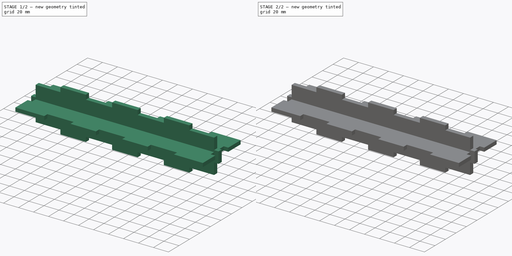
[diagram: build sequence overview — one tinted view per stage of 2, left to right]
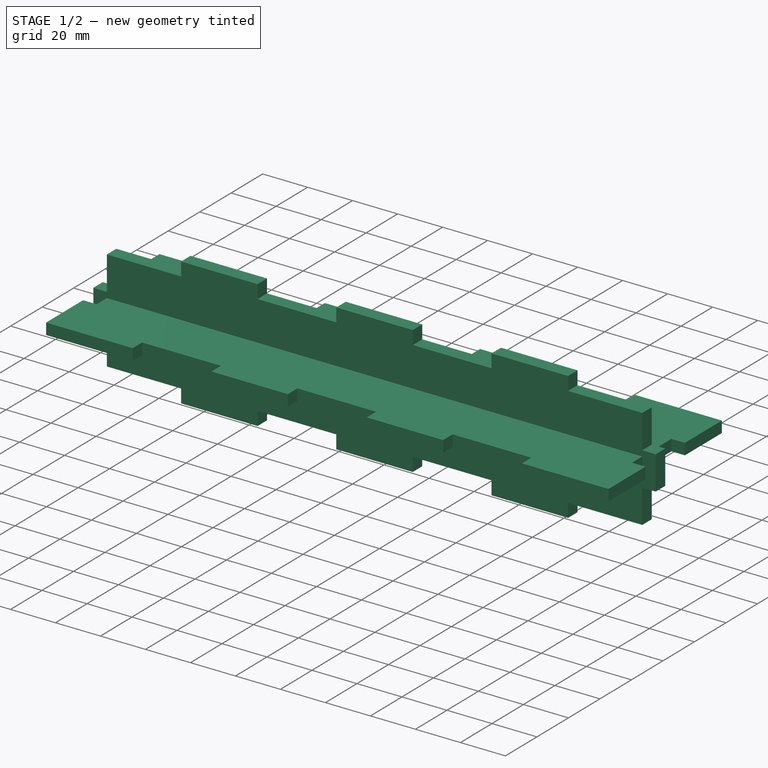
[diagram: stage 1 of 2 — iso view after this stage's code; geometry added in this stage tinted green]
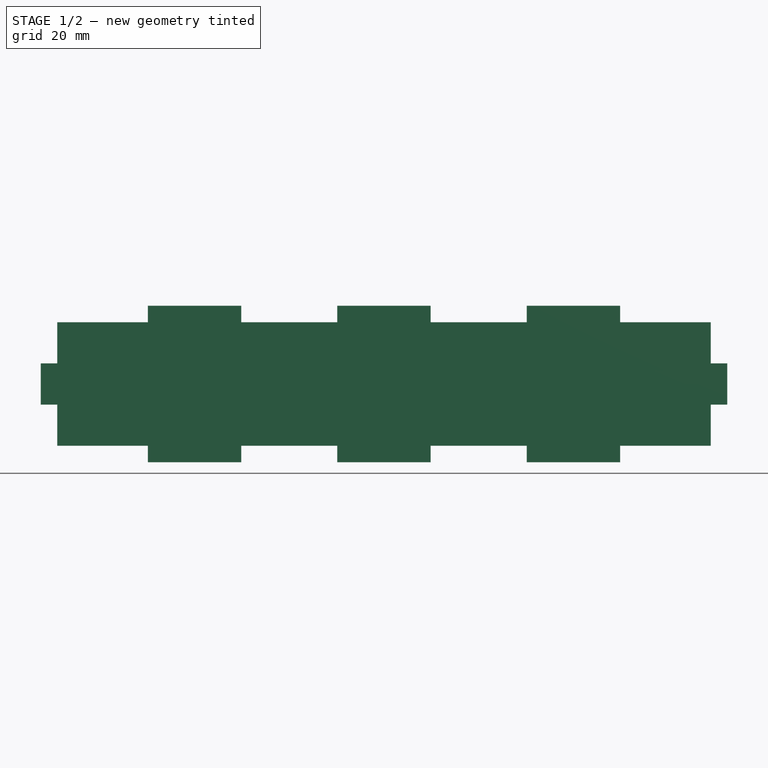
[diagram: stage 1 of 2 — front view after this stage's code; geometry added in this stage tinted green]
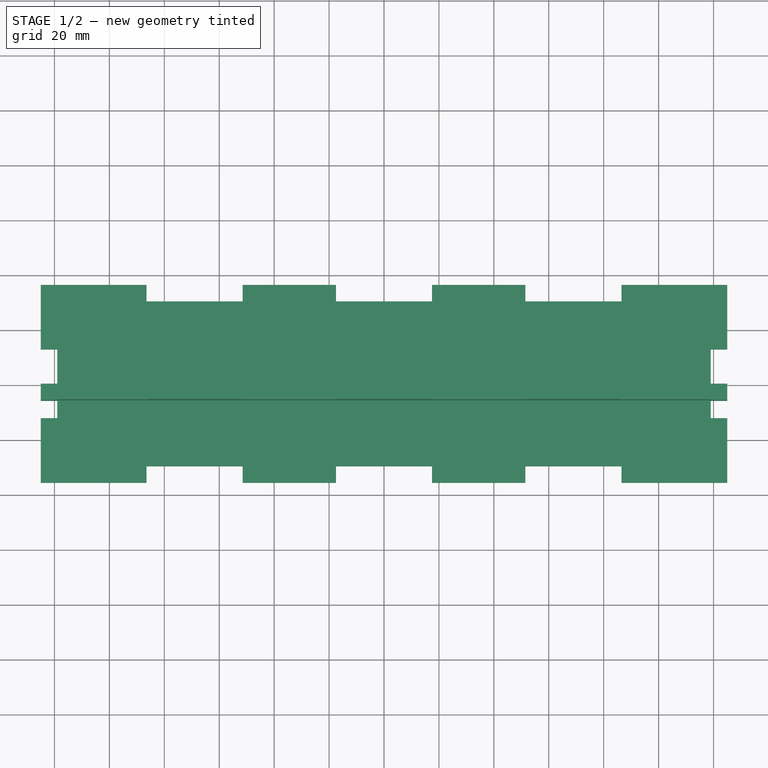
[diagram: stage 1 of 2 — top view after this stage's code; geometry added in this stage tinted green]
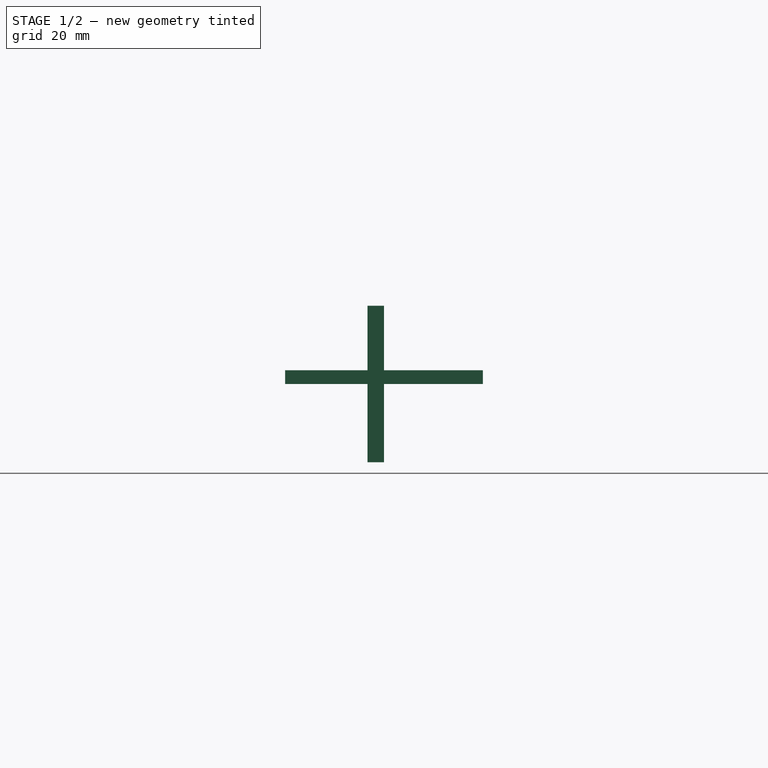
[diagram: stage 1 of 2 — right view after this stage's code; geometry added in this stage tinted green]
FCSTD DOCUMENT  (FreeCAD 0.18.4R)
Label: box_10gig
License: All rights reserved
LicenseURL: http://en.wikipedia.org/wiki/All_rights_reserved
objects: Sketcher::SketchObject×4, PartDesign::Pad×4, PartDesign::Body×4, Raytracing::RayFeature×4, App::VRMLObject×1, Raytracing::RayProject×1, Part::Feature×1, App::Part×1
note: 17 computed .brp shape members not serialized (recipe doc carries the construction recipe); baked Part::Feature solids carry a one-line shape summary decoded from their .brp

FEATURE [PartDesign::Body] Body001  label="rear"
  Group = -> [Sketch,Pad001]
  Origin = -> Origin
  Placement = pos=(0,36.0003,28.1194) rot=(0,0,1;0rad)
  Tip = -> Pad001
FEATURE [Sketcher::SketchObject] CopySketch001
  sketch-geometry (36):
    g0: LineSegment StartX=-125 StartY=36 StartZ=0 EndX=-86.5 EndY=36 EndZ=0
    g1: LineSegment StartX=-86.5 StartY=36 StartZ=0 EndX=-86.5 EndY=30 EndZ=0
    g2: LineSegment StartX=-86.5 StartY=30 StartZ=0 EndX=-51.5 EndY=30 EndZ=0
    g3: LineSegment StartX=-51.5 StartY=30 StartZ=0 EndX=-51.5 EndY=36 EndZ=0
    g4: LineSegment StartX=-51.5 StartY=36 StartZ=0 EndX=-17.5 EndY=36 EndZ=0
    g5: LineSegment StartX=-17.5 StartY=36 StartZ=0 EndX=-17.5 EndY=30 EndZ=0
    g6: LineSegment StartX=-17.5 StartY=30 StartZ=0 EndX=17.5 EndY=30 EndZ=0
    g7: LineSegment StartX=17.5 StartY=30 StartZ=0 EndX=17.5 EndY=36 EndZ=0
    g8: LineSegment StartX=17.5 StartY=36 StartZ=0 EndX=51.5 EndY=36 EndZ=0
    g9: LineSegment StartX=51.5 StartY=36 StartZ=0 EndX=51.5 EndY=30 EndZ=0
    g10: LineSegment StartX=51.5 StartY=30 StartZ=0 EndX=86.5 EndY=30 EndZ=0
    g11: LineSegment StartX=86.5 StartY=30 StartZ=0 EndX=86.5 EndY=36 EndZ=0
    g12: LineSegment StartX=86.5 StartY=36 StartZ=0 EndX=125 EndY=36 EndZ=0
    g13: LineSegment StartX=125 StartY=36 StartZ=0 EndX=125 EndY=12.5 EndZ=0
    g14: LineSegment StartX=125 StartY=12.5 StartZ=0 EndX=119 EndY=12.5 EndZ=0
    g15: LineSegment StartX=119 StartY=12.5 StartZ=0 EndX=119 EndY=-12.5 EndZ=0
    g16: LineSegment StartX=119 StartY=-12.5 StartZ=0 EndX=125 EndY=-12.5 EndZ=0
    g17: LineSegment StartX=125 StartY=-12.5 StartZ=0 EndX=125 EndY=-36 EndZ=0
    g18: LineSegment StartX=125 StartY=-36 StartZ=0 EndX=86.5 EndY=-36 EndZ=0
    g19: LineSegment StartX=86.5 StartY=-36 StartZ=0 EndX=86.5 EndY=-30 EndZ=0
    g20: LineSegment StartX=86.5 StartY=-30 StartZ=0 EndX=51.5 EndY=-30 EndZ=0
    g21: LineSegment StartX=51.5 StartY=-30 StartZ=0 EndX=51.5 EndY=-36 EndZ=0
    g22: LineSegment StartX=51.5 StartY=-36 StartZ=0 EndX=17.5 EndY=-36 EndZ=0
    g23: LineSegment StartX=17.5 StartY=-36 StartZ=0 EndX=17.5 EndY=-30 EndZ=0
    g24: LineSegment StartX=17.5 StartY=-30 StartZ=0 EndX=-17.5 EndY=-30 EndZ=0
    g25: LineSegment StartX=-17.5 StartY=-30 StartZ=0 EndX=-17.5 EndY=-36 EndZ=0
    g26: LineSegment StartX=-17.5 StartY=-36 StartZ=0 EndX=-51.5 EndY=-36 EndZ=0
    g27: LineSegment StartX=-51.5 StartY=-36 StartZ=0 EndX=-51.5 EndY=-30 EndZ=0
    g28: LineSegment StartX=-51.5 StartY=-30 StartZ=0 EndX=-86.5 EndY=-30 EndZ=0
    g29: LineSegment StartX=-86.5 StartY=-30 StartZ=0 EndX=-86.5 EndY=-36 EndZ=0
    g30: LineSegment StartX=-86.5 StartY=-36 StartZ=0 EndX=-125 EndY=-36 EndZ=0
    g31: LineSegment StartX=-125 StartY=-36 StartZ=0 EndX=-125 EndY=-12.5 EndZ=0
    g32: LineSegment StartX=-125 StartY=-12.5 StartZ=0 EndX=-119 EndY=-12.5 EndZ=0
    g33: LineSegment StartX=-119 StartY=-12.5 StartZ=0 EndX=-119 EndY=12.5 EndZ=0
    g34: LineSegment StartX=-119 StartY=12.5 StartZ=0 EndX=-125 EndY=12.5 EndZ=0
    g35: LineSegment StartX=-125 StartY=12.5 StartZ=0 EndX=-125 EndY=36 EndZ=0
  constraints (107):
    c: Coincident(g0,g1)
    c: Coincident(g1,g2)
    c: Coincident(g2,g3)
    c: Coincident(g3,g4)
    c: Coincident(g4,g5)
    c: Coincident(g5,g6)
    c: Coincident(g6,g7)
    c: Coincident(g7,g8)
    c: Coincident(g8,g9)
    c: Coincident(g9,g10)
    c: Coincident(g10,g11)
    c: Coincident(g11,g12)
    c: Coincident(g12,g13)
    c: Coincident(g13,g14)
    c: Coincident(g14,g15)
    c: Coincident(g15,g16)
    c: Coincident(g16,g17)
    c: Coincident(g17,g18)
    c: Coincident(g18,g19)
    c: Coincident(g19,g20)
    c: Coincident(g20,g21)
    c: Coincident(g21,g22)
    c: Coincident(g22,g23)
    c: Coincident(g23,g24)
    c: Coincident(g24,g25)
    c: Coincident(g25,g26)
    c: Coincident(g26,g27)
    c: Coincident(g27,g28)
    c: Coincident(g28,g29)
    c: Coincident(g29,g30)
    c: Coincident(g30,g31)
    c: Coincident(g31,g32)
    c: Coincident(g32,g33)
    c: Coincident(g33,g34)
    c: Coincident(g34,g35)
    c: Coincident(g35,g0)
    c: Horizontal(g2)
    c: Horizontal(g10)
    c: Horizontal(g20)
    c: Horizontal(g24)
    c: Horizontal(g28)
    c: Horizontal(g32)
    c: Horizontal(g34)
    c: Horizontal(g0)
    c: Horizontal(g4)
    c: Horizontal(g8)
    c: Horizontal(g12)
    c: Horizontal(g14)
    c: Horizontal(g16)
    c: Horizontal(g18)
    c: Horizontal(g22)
    c: Horizontal(g26)
    c: Horizontal(g30)
    c: Vertical(g35)
    c: Vertical(g1)
    c: Vertical(g29)
    c: Vertical(g27)
    c: Vertical(g25)
    c: Vertical(g23)
    c: Vertical(g21)
    c: Vertical(g19)
    c: Vertical(g17)
    c: Vertical(g13)
    c: Vertical(g11)
    c: Vertical(g9)
    c: Vertical(g7)
    c: Vertical(g5)
    c: Vertical(g3)
    c: Symmetric(g5,g6,g-2)
    c: Symmetric(g14,g15,g-1)
    c: DistanceX(g30,g17) = 250
    c: DistanceY(g11,g11) = 6
    c: DistanceY(g28,g1) = 60
    c: Equal(g34,g1)
    c: Equal(g1,g3)
    c: Equal(g3,g5)
    c: Equal(g5,g7)
    c: Equal(g7,g9)
    c: Equal(g9,g11)
    c: Equal(g11,g14)
    c: Equal(g14,g16)
    c: Equal(g16,g19)
    c: Equal(g19,g21)
    c: Equal(g21,g25)
    c: Equal(g25,g27)
    c: Equal(g27,g29)
    c: Equal(g29,g32)
    c: Symmetric(g30,g17,g-2)
    c: Symmetric(g33,g32,g-1)
    c: Symmetric(g0,g30,g-1)
    c: Equal(g2,g6)
    c: Equal(g10,g6)
    c: Equal(g2,g28)
    c: Equal(g24,g6)
    c: Equal(g10,g20)
    c: DistanceX(g2,g2) = 35
    c: Equal(g6,g2)
    c: Equal(g10,g6)
    c: Equal(g2,g28)
    c: Equal(g8,g4)
    c: Equal(g26,g22)
    c: Equal(g4,g26)
    c: DistanceX(g4,g4) = 34
    c: Equal(g33,g15)
    c: DistanceY(g33,g33) = 25
    c: Equal(g4,g26)
    c: Equal(g30,g0)
FEATURE [PartDesign::Pad] Pad002
  Length = 5
  Length2 = 100
  Profile = -> CopySketch001
  Type = 0
FEATURE [PartDesign::Body] Body002  label="top"
  Group = -> [Pad002]
  Origin = -> Origin002
  Placement = pos=(0,0,51) rot=(0,0,1;0rad)
  Tip = -> Pad002
FEATURE [Sketcher::SketchObject] Sketch001
  MapMode = 5
  Placement = pos=(0,0,0) rot=(1,0,0;1.5708rad)
  Support = -> [XZ_Plane003]
  sketch-geometry (36):
    g0: LineSegment StartX=-119 StartY=22.5 StartZ=0 EndX=-119 EndY=7.5 EndZ=0
    g1: LineSegment StartX=-125 StartY=7.5 StartZ=0 EndX=-125 EndY=-7.5 EndZ=0
    g2: LineSegment StartX=-119 StartY=-7.5 StartZ=0 EndX=-119 EndY=-22.5 EndZ=0
    g3: LineSegment StartX=-119 StartY=-22.5 StartZ=0 EndX=-86 EndY=-22.5 EndZ=0
    g4: LineSegment StartX=-86 StartY=-22.5 StartZ=0 EndX=-86 EndY=-28.5 EndZ=0
    g5: LineSegment StartX=-86 StartY=-28.5 StartZ=0 EndX=-52 EndY=-28.5 EndZ=0
    g6: LineSegment StartX=-52 StartY=-28.5 StartZ=0 EndX=-52 EndY=-22.5 EndZ=0
    g7: LineSegment StartX=-52 StartY=-22.5 StartZ=0 EndX=-17 EndY=-22.5 EndZ=0
    g8: LineSegment StartX=-17 StartY=-22.5 StartZ=0 EndX=-17 EndY=-28.5 EndZ=0
    g9: LineSegment StartX=-17 StartY=-28.5 StartZ=0 EndX=17 EndY=-28.5 EndZ=0
    g10: LineSegment StartX=17 StartY=-28.5 StartZ=0 EndX=17 EndY=-22.5 EndZ=0
    g11: LineSegment StartX=17 StartY=-22.5 StartZ=0 EndX=52 EndY=-22.5 EndZ=0
    g12: LineSegment StartX=52 StartY=-22.5 StartZ=0 EndX=52 EndY=-28.5 EndZ=0
    g13: LineSegment StartX=52 StartY=-28.5 StartZ=0 EndX=86 EndY=-28.5 EndZ=0
    g14: LineSegment StartX=86 StartY=-28.5 StartZ=0 EndX=86 EndY=-22.5 EndZ=0
    g15: LineSegment StartX=86 StartY=-22.5 StartZ=0 EndX=119 EndY=-22.5 EndZ=0
    g16: LineSegment StartX=119 StartY=-22.5 StartZ=0 EndX=119 EndY=-7.5 EndZ=0
    g17: LineSegment StartX=125 StartY=-7.5 StartZ=0 EndX=125 EndY=7.5 EndZ=0
    g18: LineSegment StartX=119 StartY=7.5 StartZ=0 EndX=119 EndY=22.5 EndZ=0
    g19: LineSegment StartX=119 StartY=22.5 StartZ=0 EndX=86 EndY=22.5 EndZ=0
    g20: LineSegment StartX=86 StartY=22.5 StartZ=0 EndX=86 EndY=28.5 EndZ=0
    g21: LineSegment StartX=86 StartY=28.5 StartZ=0 EndX=52 EndY=28.5 EndZ=0
    g22: LineSegment StartX=52 StartY=28.5 StartZ=0 EndX=52 EndY=22.5 EndZ=0
    g23: LineSegment StartX=52 StartY=22.5 StartZ=0 EndX=17 EndY=22.5 EndZ=0
    g24: LineSegment StartX=17 StartY=22.5 StartZ=0 EndX=17 EndY=28.5 EndZ=0
    g25: LineSegment StartX=17 StartY=28.5 StartZ=0 EndX=-17 EndY=28.5 EndZ=0
    g26: LineSegment StartX=-17 StartY=28.5 StartZ=0 EndX=-17 EndY=22.5 EndZ=0
    g27: LineSegment StartX=-17 StartY=22.5 StartZ=0 EndX=-52 EndY=22.5 EndZ=0
    g28: LineSegment StartX=-52 StartY=22.5 StartZ=0 EndX=-52 EndY=28.5 EndZ=0
    g29: LineSegment StartX=-52 StartY=28.5 StartZ=0 EndX=-86 EndY=28.5 EndZ=0
    g30: LineSegment StartX=-86 StartY=28.5 StartZ=0 EndX=-86 EndY=22.5 EndZ=0
    g31: LineSegment StartX=-86 StartY=22.5 StartZ=0 EndX=-119 EndY=22.5 EndZ=0
    g32: LineSegment StartX=-125 StartY=7.5 StartZ=0 EndX=-119 EndY=7.5 EndZ=0
    g33: LineSegment StartX=-119 StartY=-7.5 StartZ=0 EndX=-125 EndY=-7.5 EndZ=0
    g34: LineSegment StartX=125 StartY=-7.5 StartZ=0 EndX=119 EndY=-7.5 EndZ=0
    g35: LineSegment StartX=125 StartY=7.5 StartZ=0 EndX=119 EndY=7.5 EndZ=0
  constraints (105):
    c: Vertical(g0)
    c: Vertical(g1)
    c: Vertical(g2)
    c: Coincident(g2,g3)
    c: Coincident(g3,g4)
    c: Vertical(g4)
    c: Coincident(g4,g5)
    c: Coincident(g5,g6)
    c: Coincident(g6,g7)
    c: Coincident(g7,g8)
    c: Coincident(g8,g9)
    c: Coincident(g9,g10)
    c: Vertical(g10)
    c: Coincident(g10,g11)
    c: Horizontal(g11)
    c: Coincident(g11,g12)
    c: Coincident(g12,g13)
    c: Horizontal(g13)
    c: Coincident(g13,g14)
    c: Coincident(g14,g15)
    c: Horizontal(g15)
    c: Coincident(g15,g16)
    c: Vertical(g18)
    c: Coincident(g18,g19)
    c: Coincident(g19,g20)
    c: Vertical(g20)
    c: Coincident(g20,g21)
    c: Horizontal(g21)
    c: Coincident(g21,g22)
    c: Coincident(g22,g23)
    c: Horizontal(g23)
    c: Coincident(g23,g24)
    c: Coincident(g24,g25)
    c: Coincident(g25,g26)
    c: Coincident(g26,g27)
    c: Horizontal(g27)
    c: Coincident(g27,g28)
    c: Vertical(g28)
    c: Coincident(g28,g29)
    c: Coincident(g29,g30)
    c: Vertical(g30)
    c: Coincident(g30,g31)
    c: Coincident(g31,g0)
    c: Equal(g30,g28)
    c: Equal(g28,g26)
    c: Equal(g26,g24)
    c: Equal(g24,g22)
    c: Equal(g22,g20)
    c: Horizontal(g31)
    c: Horizontal(g29)
    c: Horizontal(g5)
    c: Horizontal(g3)
    c: Horizontal(g7)
    c: Horizontal(g19)
    c: Vertical(g26)
    c: Vertical(g24)
    c: Vertical(g22)
    c: Vertical(g12)
    c: Vertical(g8)
    c: Vertical(g6)
    c: Equal(g12,g14)
    c: Equal(g10,g12)
    c: Equal(g8,g10)
    c: Equal(g6,g8)
    c: Equal(g4,g6)
    c: Vertical(g16)
    c: Vertical(g14)
    c: Coincident(g32,g1)
    c: Coincident(g32,g0)
    c: Horizontal(g32)
    c: Coincident(g33,g2)
    c: Coincident(g33,g1)
    c: Horizontal(g33)
    c: Coincident(g34,g17)
    c: Coincident(g34,g16)
    c: Coincident(g35,g17)
    c: Horizontal(g35)
    c: Equal(g20,g35)
    c: Equal(g34,g35)
    c: Equal(g34,g14)
    c: Equal(g4,g33)
    c: Coincident(g35,g18)
    c: Symmetric(g17,g17,g-1)
    c: Equal(g18,g16)
    c: Equal(g0,g2)
    c: Equal(g17,g1)
    c: Equal(g33,g32)
    c: Equal(g27,g23)
    c: Equal(g25,g29)
    c: Equal(g29,g21)
    c: DistanceY(g30,g29) = 6
    c: DistanceX(g1,g17) = 250
    c: DistanceY(g15,g18) = 45
    c: Symmetric(g8,g9,g-2)
    c: Equal(g7,g27)
    c: Symmetric(g25,g24,g-2)
    c: Symmetric(g1,g17,g-2)
    c: DistanceY(g17,g17) = 15
    c: DistanceX(g29,g29) = 34
    c: DistanceX(g27,g27) = 35
    c: Equal(g13,g5)
    c: Equal(g9,g25)
    c: Equal(g11,g7)
    c: Equal(g13,g5)
    c: Equal(g5,g29)
FEATURE [PartDesign::Pad] Pad003
  Length = 6
  Length2 = 100
  Placement = pos=(0,0,0) rot=(1,0,0;1.5708rad)
  Profile = -> Sketch001
  Type = 0
FEATURE [PartDesign::Body] Body003  label="front"
  Group = -> [Sketch001,Pad003]
  Origin = -> Origin003
  Placement = pos=(0,-30.0016,28.1194) rot=(0,0,1;0rad)
  Tip = -> Pad003
FEATURE [Raytracing::RayFeature] Body_View
  Result = <blob: 18440 chars omitted>
  Source = -> Body
  Transparency = 0
FEATURE [Raytracing::RayFeature] Body001_View
  Result = <blob: 25648 chars omitted>
  Source = -> Body001
  Transparency = 0
FEATURE [Raytracing::RayFeature] Body002_View
  Result = <blob: 18890 chars omitted>
  Source = -> Body002
  Transparency = 0
FEATURE [Raytracing::RayFeature] Body003_View
  Result = <blob: 21845 chars omitted>
  Source = -> Body003
  Transparency = 0
FEATURE [Raytracing::RayProject] PovProject
  Camera = // declares position and view direction\n\n// Generated by FreeCAD (http://www.freecadweb.org/)\n#declare cam_location =  <-290.453,53.4225,67.8351>;\n#declare cam_look_at  = <35.6243,3.04154,-2.65304>;\n#declare cam_sky      = <0.148622,0.988709,-0.0191511>;\n#declare cam_angle    = 45; \ncamera {\n  location  cam_location\n  look_at   cam_look_at\n  sky       cam_sky\n  angle     cam_angle \n  right x*3648/2736\n}
  Group = -> [Body_View,Body001_View,Body002_View,Body003_View]
  Template = <path>
FEATURE [Part::Feature] Part__Feature  label="˟°1"
  Placement = pos=(-89.92,8.03953e-07,27.6303) rot=(0,1,0;1.5708rad)
  shape: bbox 28.2 x 41.27 x 41.27 mm, 170 faces (baked)
FEATURE [App::Part] _0X28P3_FRAME_HOOK  label="fan"
  Group = -> [Part__Feature]
  Origin = -> Origin004
note: 1 file-system path scrubbed to <path> (originals preserved in the JSON sidecar)
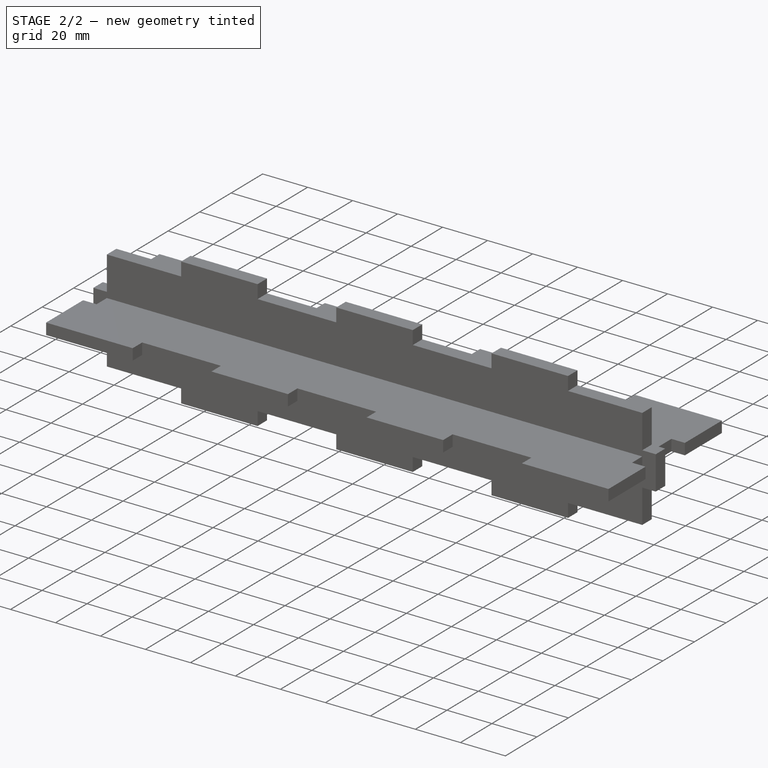
[diagram: stage 2 of 2 — iso view after this stage's code; geometry added in this stage tinted green]
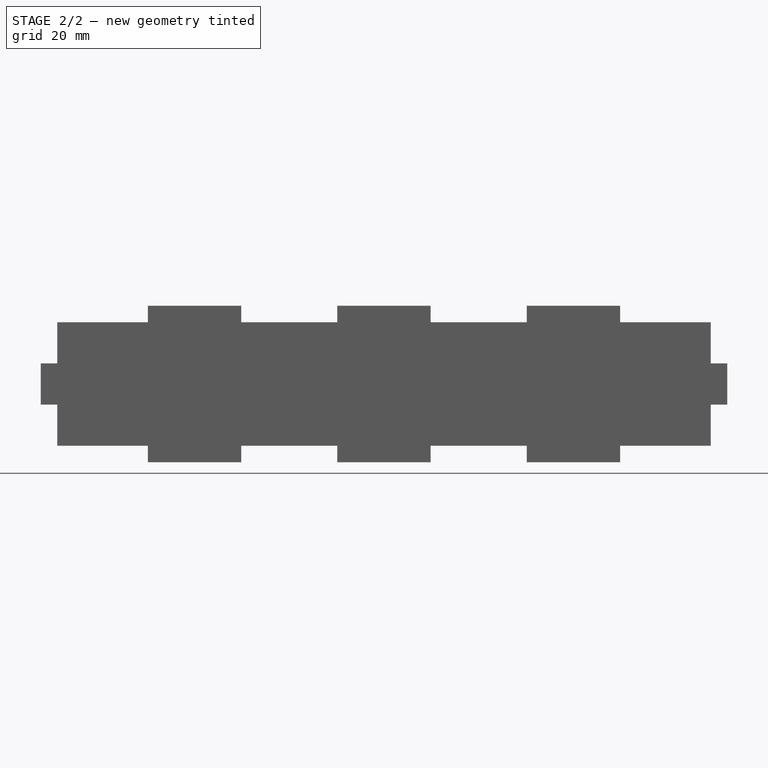
[diagram: stage 2 of 2 — front view after this stage's code; geometry added in this stage tinted green]
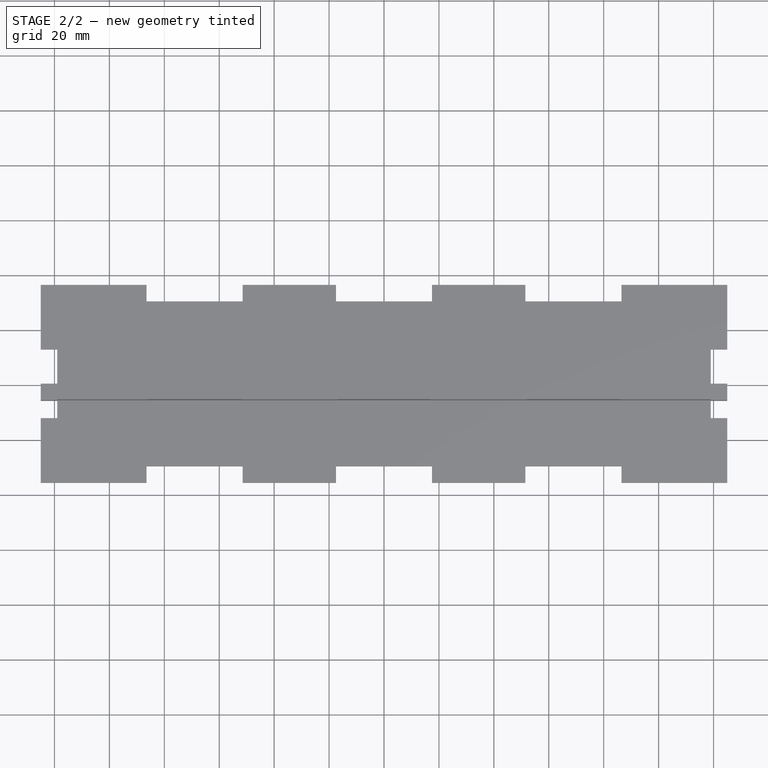
[diagram: stage 2 of 2 — top view after this stage's code; geometry added in this stage tinted green]
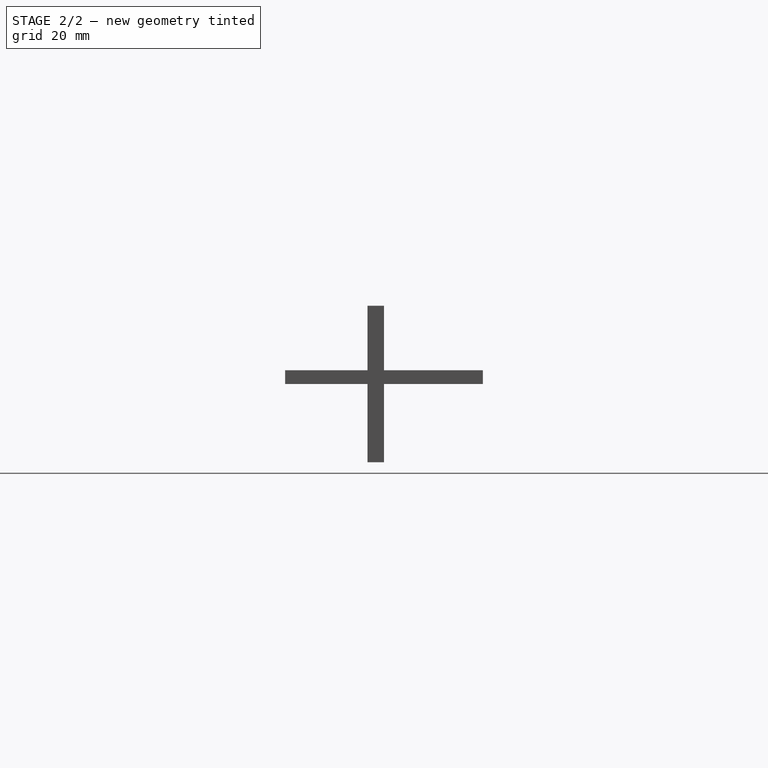
[diagram: stage 2 of 2 — right view after this stage's code; geometry added in this stage tinted green]
FEATURE [App::VRMLObject] multi_smtpa_linear  label="multi-smtpa_linear"
  Placement = pos=(-158.501,77.1112,39.7191) rot=(0,0,1;0rad)
FEATURE [Sketcher::SketchObject] CopySketch
  sketch-geometry (36):
    g0: LineSegment StartX=-125 StartY=36 StartZ=0 EndX=-86.5 EndY=36 EndZ=0
    g1: LineSegment StartX=-86.5 StartY=36 StartZ=0 EndX=-86.5 EndY=30 EndZ=0
    g2: LineSegment StartX=-86.5 StartY=30 StartZ=0 EndX=-51.5 EndY=30 EndZ=0
    g3: LineSegment StartX=-51.5 StartY=30 StartZ=0 EndX=-51.5 EndY=36 EndZ=0
    g4: LineSegment StartX=-51.5 StartY=36 StartZ=0 EndX=-17.5 EndY=36 EndZ=0
    g5: LineSegment StartX=-17.5 StartY=36 StartZ=0 EndX=-17.5 EndY=30 EndZ=0
    g6: LineSegment StartX=-17.5 StartY=30 StartZ=0 EndX=17.5 EndY=30 EndZ=0
    g7: LineSegment StartX=17.5 StartY=30 StartZ=0 EndX=17.5 EndY=36 EndZ=0
    g8: LineSegment StartX=17.5 StartY=36 StartZ=0 EndX=51.5 EndY=36 EndZ=0
    g9: LineSegment StartX=51.5 StartY=36 StartZ=0 EndX=51.5 EndY=30 EndZ=0
    g10: LineSegment StartX=51.5 StartY=30 StartZ=0 EndX=86.5 EndY=30 EndZ=0
    g11: LineSegment StartX=86.5 StartY=30 StartZ=0 EndX=86.5 EndY=36 EndZ=0
    g12: LineSegment StartX=86.5 StartY=36 StartZ=0 EndX=125 EndY=36 EndZ=0
    g13: LineSegment StartX=125 StartY=36 StartZ=0 EndX=125 EndY=12.5 EndZ=0
    g14: LineSegment StartX=125 StartY=12.5 StartZ=0 EndX=119 EndY=12.5 EndZ=0
    g15: LineSegment StartX=119 StartY=12.5 StartZ=0 EndX=119 EndY=-12.5 EndZ=0
    g16: LineSegment StartX=119 StartY=-12.5 StartZ=0 EndX=125 EndY=-12.5 EndZ=0
    g17: LineSegment StartX=125 StartY=-12.5 StartZ=0 EndX=125 EndY=-36 EndZ=0
    g18: LineSegment StartX=125 StartY=-36 StartZ=0 EndX=86.5 EndY=-36 EndZ=0
    g19: LineSegment StartX=86.5 StartY=-36 StartZ=0 EndX=86.5 EndY=-30 EndZ=0
    g20: LineSegment StartX=86.5 StartY=-30 StartZ=0 EndX=51.5 EndY=-30 EndZ=0
    g21: LineSegment StartX=51.5 StartY=-30 StartZ=0 EndX=51.5 EndY=-36 EndZ=0
    g22: LineSegment StartX=51.5 StartY=-36 StartZ=0 EndX=17.5 EndY=-36 EndZ=0
    g23: LineSegment StartX=17.5 StartY=-36 StartZ=0 EndX=17.5 EndY=-30 EndZ=0
    g24: LineSegment StartX=17.5 StartY=-30 StartZ=0 EndX=-17.5 EndY=-30 EndZ=0
    g25: LineSegment StartX=-17.5 StartY=-30 StartZ=0 EndX=-17.5 EndY=-36 EndZ=0
    g26: LineSegment StartX=-17.5 StartY=-36 StartZ=0 EndX=-51.5 EndY=-36 EndZ=0
    g27: LineSegment StartX=-51.5 StartY=-36 StartZ=0 EndX=-51.5 EndY=-30 EndZ=0
    g28: LineSegment StartX=-51.5 StartY=-30 StartZ=0 EndX=-86.5 EndY=-30 EndZ=0
    g29: LineSegment StartX=-86.5 StartY=-30 StartZ=0 EndX=-86.5 EndY=-36 EndZ=0
    g30: LineSegment StartX=-86.5 StartY=-36 StartZ=0 EndX=-125 EndY=-36 EndZ=0
    g31: LineSegment StartX=-125 StartY=-36 StartZ=0 EndX=-125 EndY=-12.5 EndZ=0
    g32: LineSegment StartX=-125 StartY=-12.5 StartZ=0 EndX=-119 EndY=-12.5 EndZ=0
    g33: LineSegment StartX=-119 StartY=-12.5 StartZ=0 EndX=-119 EndY=12.5 EndZ=0
    g34: LineSegment StartX=-119 StartY=12.5 StartZ=0 EndX=-125 EndY=12.5 EndZ=0
    g35: LineSegment StartX=-125 StartY=12.5 StartZ=0 EndX=-125 EndY=36 EndZ=0
  constraints (107):
    c: Coincident(g0,g1)
    c: Coincident(g1,g2)
    c: Coincident(g2,g3)
    c: Coincident(g3,g4)
    c: Coincident(g4,g5)
    c: Coincident(g5,g6)
    c: Coincident(g6,g7)
    c: Coincident(g7,g8)
    c: Coincident(g8,g9)
    c: Coincident(g9,g10)
    c: Coincident(g10,g11)
    c: Coincident(g11,g12)
    c: Coincident(g12,g13)
    c: Coincident(g13,g14)
    c: Coincident(g14,g15)
    c: Coincident(g15,g16)
    c: Coincident(g16,g17)
    c: Coincident(g17,g18)
    c: Coincident(g18,g19)
    c: Coincident(g19,g20)
    c: Coincident(g20,g21)
    c: Coincident(g21,g22)
    c: Coincident(g22,g23)
    c: Coincident(g23,g24)
    c: Coincident(g24,g25)
    c: Coincident(g25,g26)
    c: Coincident(g26,g27)
    c: Coincident(g27,g28)
    c: Coincident(g28,g29)
    c: Coincident(g29,g30)
    c: Coincident(g30,g31)
    c: Coincident(g31,g32)
    c: Coincident(g32,g33)
    c: Coincident(g33,g34)
    c: Coincident(g34,g35)
    c: Coincident(g35,g0)
    c: Horizontal(g2)
    c: Horizontal(g10)
    c: Horizontal(g20)
    c: Horizontal(g24)
    c: Horizontal(g28)
    c: Horizontal(g32)
    c: Horizontal(g34)
    c: Horizontal(g0)
    c: Horizontal(g4)
    c: Horizontal(g8)
    c: Horizontal(g12)
    c: Horizontal(g14)
    c: Horizontal(g16)
    c: Horizontal(g18)
    c: Horizontal(g22)
    c: Horizontal(g26)
    c: Horizontal(g30)
    c: Vertical(g35)
    c: Vertical(g1)
    c: Vertical(g29)
    c: Vertical(g27)
    c: Vertical(g25)
    c: Vertical(g23)
    c: Vertical(g21)
    c: Vertical(g19)
    c: Vertical(g17)
    c: Vertical(g13)
    c: Vertical(g11)
    c: Vertical(g9)
    c: Vertical(g7)
    c: Vertical(g5)
    c: Vertical(g3)
    c: Symmetric(g5,g6,g-2)
    c: Symmetric(g14,g15,g-1)
    c: DistanceX(g30,g17) = 250
    c: DistanceY(g11,g11) = 6
    c: DistanceY(g28,g1) = 60
    c: Equal(g34,g1)
    c: Equal(g1,g3)
    c: Equal(g3,g5)
    c: Equal(g5,g7)
    c: Equal(g7,g9)
    c: Equal(g9,g11)
    c: Equal(g11,g14)
    c: Equal(g14,g16)
    c: Equal(g16,g19)
    c: Equal(g19,g21)
    c: Equal(g21,g25)
    c: Equal(g25,g27)
    c: Equal(g27,g29)
    c: Equal(g29,g32)
    c: Symmetric(g30,g17,g-2)
    c: Symmetric(g33,g32,g-1)
    c: Symmetric(g0,g30,g-1)
    c: Equal(g2,g6)
    c: Equal(g10,g6)
    c: Equal(g2,g28)
    c: Equal(g24,g6)
    c: Equal(g10,g20)
    c: DistanceX(g2,g2) = 35
    c: Equal(g6,g2)
    c: Equal(g10,g6)
    c: Equal(g2,g28)
    c: Equal(g8,g4)
    c: Equal(g26,g22)
    c: Equal(g4,g26)
    c: DistanceX(g4,g4) = 34
    c: Equal(g33,g15)
    c: DistanceY(g33,g33) = 25
    c: Equal(g4,g26)
    c: Equal(g30,g0)
FEATURE [PartDesign::Pad] Pad
  Length = 5
  Length2 = 100
  Profile = -> CopySketch
  Type = 0
FEATURE [PartDesign::Body] Body  label="bottom"
  Group = -> [Pad]
  Origin = -> Origin001
  Tip = -> Pad
FEATURE [Sketcher::SketchObject] Sketch
  MapMode = 5
  Placement = pos=(0,0,0) rot=(1,0,0;1.5708rad)
  Support = -> [XZ_Plane]
  sketch-geometry (40):
    g0: LineSegment StartX=-119 StartY=22.5 StartZ=0 EndX=-119 EndY=7.5 EndZ=0
    g1: LineSegment StartX=-125 StartY=7.5 StartZ=0 EndX=-125 EndY=-7.5 EndZ=0
    g2: LineSegment StartX=-119 StartY=-7.5 StartZ=0 EndX=-119 EndY=-22.5 EndZ=0
    g3: LineSegment StartX=-119 StartY=-22.5 StartZ=0 EndX=-86 EndY=-22.5 EndZ=0
    g4: LineSegment StartX=-86 StartY=-22.5 StartZ=0 EndX=-86 EndY=-28.5 EndZ=0
    g5: LineSegment StartX=-86 StartY=-28.5 StartZ=0 EndX=-52 EndY=-28.5 EndZ=0
    g6: LineSegment StartX=-52 StartY=-28.5 StartZ=0 EndX=-52 EndY=-22.5 EndZ=0
    g7: LineSegment StartX=-52 StartY=-22.5 StartZ=0 EndX=-17 EndY=-22.5 EndZ=0
    g8: LineSegment StartX=-17 StartY=-22.5 StartZ=0 EndX=-17 EndY=-28.5 EndZ=0
    g9: LineSegment StartX=-17 StartY=-28.5 StartZ=0 EndX=17 EndY=-28.5 EndZ=0
    g10: LineSegment StartX=17 StartY=-28.5 StartZ=0 EndX=17 EndY=-22.5 EndZ=0
    g11: LineSegment StartX=17 StartY=-22.5 StartZ=0 EndX=52 EndY=-22.5 EndZ=0
    g12: LineSegment StartX=52 StartY=-22.5 StartZ=0 EndX=52 EndY=-28.5 EndZ=0
    g13: LineSegment StartX=52 StartY=-28.5 StartZ=0 EndX=86 EndY=-28.5 EndZ=0
    g14: LineSegment StartX=86 StartY=-28.5 StartZ=0 EndX=86 EndY=-22.5 EndZ=0
    g15: LineSegment StartX=86 StartY=-22.5 StartZ=0 EndX=119 EndY=-22.5 EndZ=0
    g16: LineSegment StartX=119 StartY=-22.5 StartZ=0 EndX=119 EndY=-7.5 EndZ=0
    g17: LineSegment StartX=125 StartY=-7.5 StartZ=0 EndX=125 EndY=7.5 EndZ=0
    g18: LineSegment StartX=119 StartY=7.5 StartZ=0 EndX=119 EndY=22.5 EndZ=0
    g19: LineSegment StartX=119 StartY=22.5 StartZ=0 EndX=86 EndY=22.5 EndZ=0
    g20: LineSegment StartX=86 StartY=22.5 StartZ=0 EndX=86 EndY=28.5 EndZ=0
    g21: LineSegment StartX=86 StartY=28.5 StartZ=0 EndX=52 EndY=28.5 EndZ=0
    g22: LineSegment StartX=52 StartY=28.5 StartZ=0 EndX=52 EndY=22.5 EndZ=0
    g23: LineSegment StartX=52 StartY=22.5 StartZ=0 EndX=17 EndY=22.5 EndZ=0
    g24: LineSegment StartX=17 StartY=22.5 StartZ=0 EndX=17 EndY=28.5 EndZ=0
    g25: LineSegment StartX=17 StartY=28.5 StartZ=0 EndX=-17 EndY=28.5 EndZ=0
    g26: LineSegment StartX=-17 StartY=28.5 StartZ=0 EndX=-17 EndY=22.5 EndZ=0
    g27: LineSegment StartX=-17 StartY=22.5 StartZ=0 EndX=-52 EndY=22.5 EndZ=0
    g28: LineSegment StartX=-52 StartY=22.5 StartZ=0 EndX=-52 EndY=28.5 EndZ=0
    g29: LineSegment StartX=-52 StartY=28.5 StartZ=0 EndX=-86 EndY=28.5 EndZ=0
    g30: LineSegment StartX=-86 StartY=28.5 StartZ=0 EndX=-86 EndY=22.5 EndZ=0
    g31: LineSegment StartX=-86 StartY=22.5 StartZ=0 EndX=-119 EndY=22.5 EndZ=0
    g32: LineSegment StartX=-125 StartY=7.5 StartZ=0 EndX=-119 EndY=7.5 EndZ=0
    g33: LineSegment StartX=-119 StartY=-7.5 StartZ=0 EndX=-125 EndY=-7.5 EndZ=0
    g34: LineSegment StartX=125 StartY=-7.5 StartZ=0 EndX=119 EndY=-7.5 EndZ=0
    g35: LineSegment StartX=125 StartY=7.5 StartZ=0 EndX=119 EndY=7.5 EndZ=0
    g36: LineSegment StartX=20.2852 StartY=8.0135 StartZ=0 EndX=-29.7148 EndY=8.0135 EndZ=0
    g37: LineSegment StartX=-29.7148 StartY=8.0135 StartZ=0 EndX=-29.7148 EndY=18.0135 EndZ=0
    g38: LineSegment StartX=-29.7148 StartY=18.0135 StartZ=0 EndX=20.2852 EndY=18.0135 EndZ=0
    g39: LineSegment StartX=20.2852 StartY=18.0135 StartZ=0 EndX=20.2852 EndY=8.0135 EndZ=0
  constraints (115):
    c: Vertical(g0)
    c: Vertical(g1)
    c: Vertical(g2)
    c: Coincident(g2,g3)
    c: Coincident(g3,g4)
    c: Vertical(g4)
    c: Coincident(g4,g5)
    c: Coincident(g5,g6)
    c: Coincident(g6,g7)
    c: Coincident(g7,g8)
    c: Coincident(g8,g9)
    c: Coincident(g9,g10)
    c: Vertical(g10)
    c: Coincident(g10,g11)
    c: Horizontal(g11)
    c: Coincident(g11,g12)
    c: Coincident(g12,g13)
    c: Horizontal(g13)
    c: Coincident(g13,g14)
    c: Coincident(g14,g15)
    c: Horizontal(g15)
    c: Coincident(g15,g16)
    c: Vertical(g18)
    c: Coincident(g18,g19)
    c: Coincident(g19,g20)
    c: Vertical(g20)
    c: Coincident(g20,g21)
    c: Horizontal(g21)
    c: Coincident(g21,g22)
    c: Coincident(g22,g23)
    c: Horizontal(g23)
    c: Coincident(g23,g24)
    c: Coincident(g24,g25)
    c: Coincident(g25,g26)
    c: Coincident(g26,g27)
    c: Horizontal(g27)
    c: Coincident(g27,g28)
    c: Vertical(g28)
    c: Coincident(g28,g29)
    c: Coincident(g29,g30)
    c: Vertical(g30)
    c: Coincident(g30,g31)
    c: Coincident(g31,g0)
    c: Equal(g30,g28)
    c: Equal(g28,g26)
    c: Equal(g26,g24)
    c: Equal(g24,g22)
    c: Equal(g22,g20)
    c: Horizontal(g31)
    c: Horizontal(g29)
    c: Horizontal(g5)
    c: Horizontal(g3)
    c: Horizontal(g7)
    c: Horizontal(g19)
    c: Vertical(g26)
    c: Vertical(g24)
    c: Vertical(g22)
    c: Vertical(g12)
    c: Vertical(g8)
    c: Vertical(g6)
    c: Equal(g12,g14)
    c: Equal(g10,g12)
    c: Equal(g8,g10)
    c: Equal(g6,g8)
    c: Equal(g4,g6)
    c: Vertical(g16)
    c: Vertical(g14)
    c: Coincident(g32,g1)
    c: Coincident(g32,g0)
    c: Horizontal(g32)
    c: Coincident(g33,g2)
    c: Coincident(g33,g1)
    c: Horizontal(g33)
    c: Coincident(g34,g17)
    c: Coincident(g34,g16)
    c: Coincident(g35,g17)
    c: Horizontal(g35)
    c: Equal(g20,g35)
    c: Equal(g34,g35)
    c: Equal(g34,g14)
    c: Equal(g4,g33)
    c: Coincident(g35,g18)
    c: Symmetric(g17,g17,g-1)
    c: Equal(g18,g16)
    c: Equal(g0,g2)
    c: Equal(g17,g1)
    c: Equal(g33,g32)
    c: Equal(g27,g23)
    c: Equal(g25,g29)
    c: Equal(g29,g21)
    c: DistanceY(g30,g29) = 6
    c: DistanceX(g1,g17) = 250
    c: DistanceY(g15,g18) = 45
    c: Symmetric(g8,g9,g-2)
    c: Equal(g7,g27)
    c: Symmetric(g25,g24,g-2)
    c: Symmetric(g1,g17,g-2)
    c: DistanceY(g17,g17) = 15
    c: DistanceX(g29,g29) = 34
    c: DistanceX(g27,g27) = 35
    c: Equal(g13,g5)
    c: Equal(g9,g25)
    c: Equal(g11,g7)
    c: Equal(g13,g5)
    c: Equal(g5,g29)
    c: Coincident(g36,g37)
    c: Coincident(g37,g38)
    c: Coincident(g38,g39)
    c: Coincident(g39,g36)
    c: Horizontal(g36)
    c: Horizontal(g38)
    c: Vertical(g37)
    c: Vertical(g39)
    c: DistanceY(g39,g39) = 10
    c: DistanceX(g36,g36) = 50
FEATURE [PartDesign::Pad] Pad001
  Length = 6
  Length2 = 100
  Placement = pos=(0,0,0) rot=(1,0,0;1.5708rad)
  Profile = -> Sketch
  Type = 0
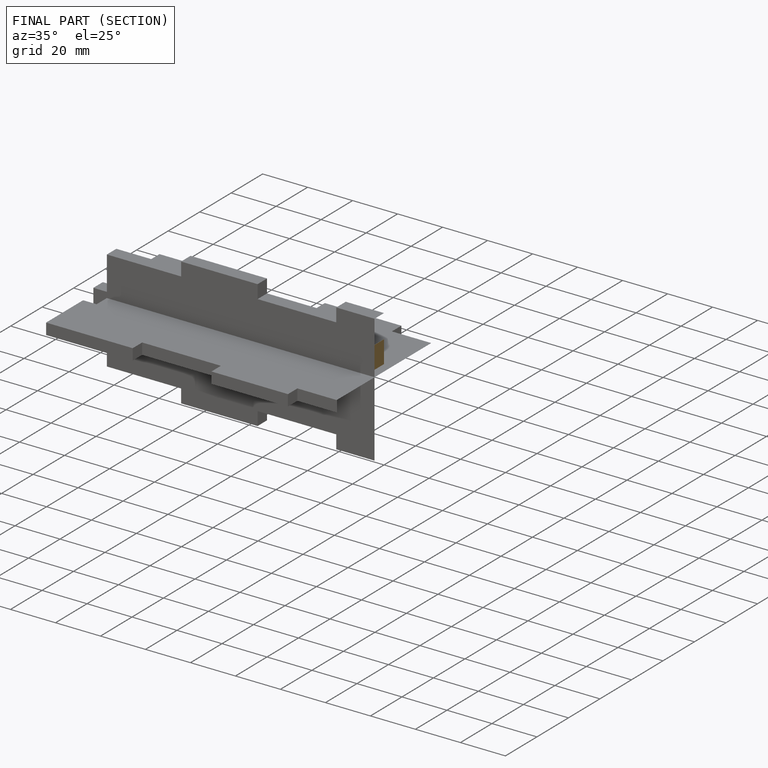
[diagram: finished part — half-section view (interior)]
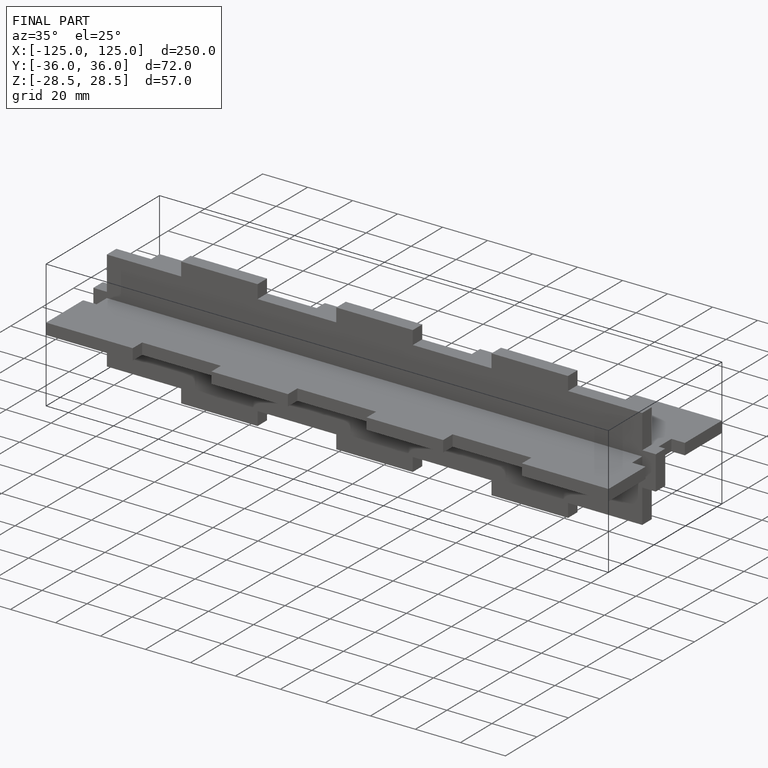
[diagram: finished part — iso view with bounding-box wireframe]
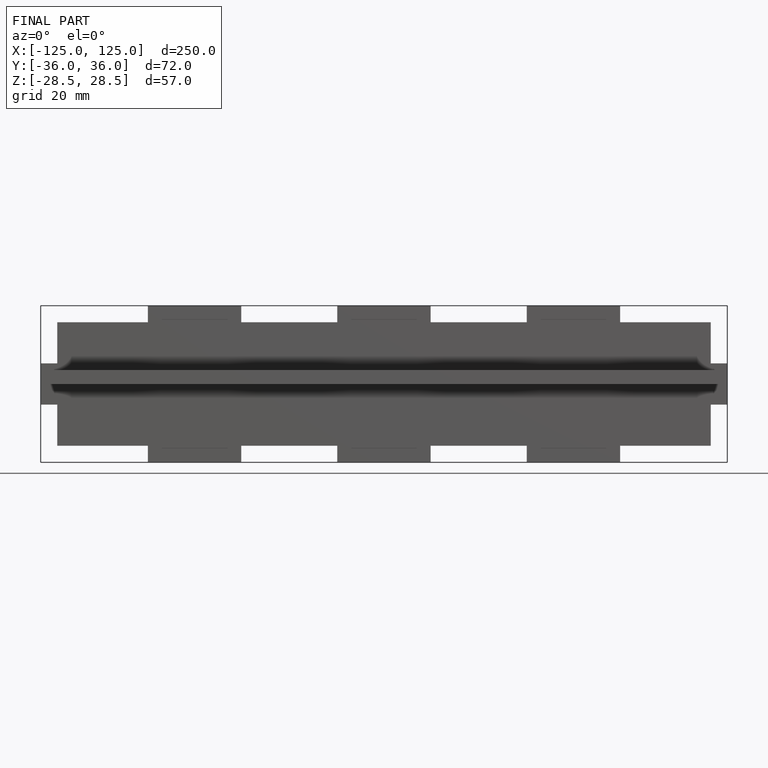
[diagram: finished part — front view with bounding-box wireframe]
